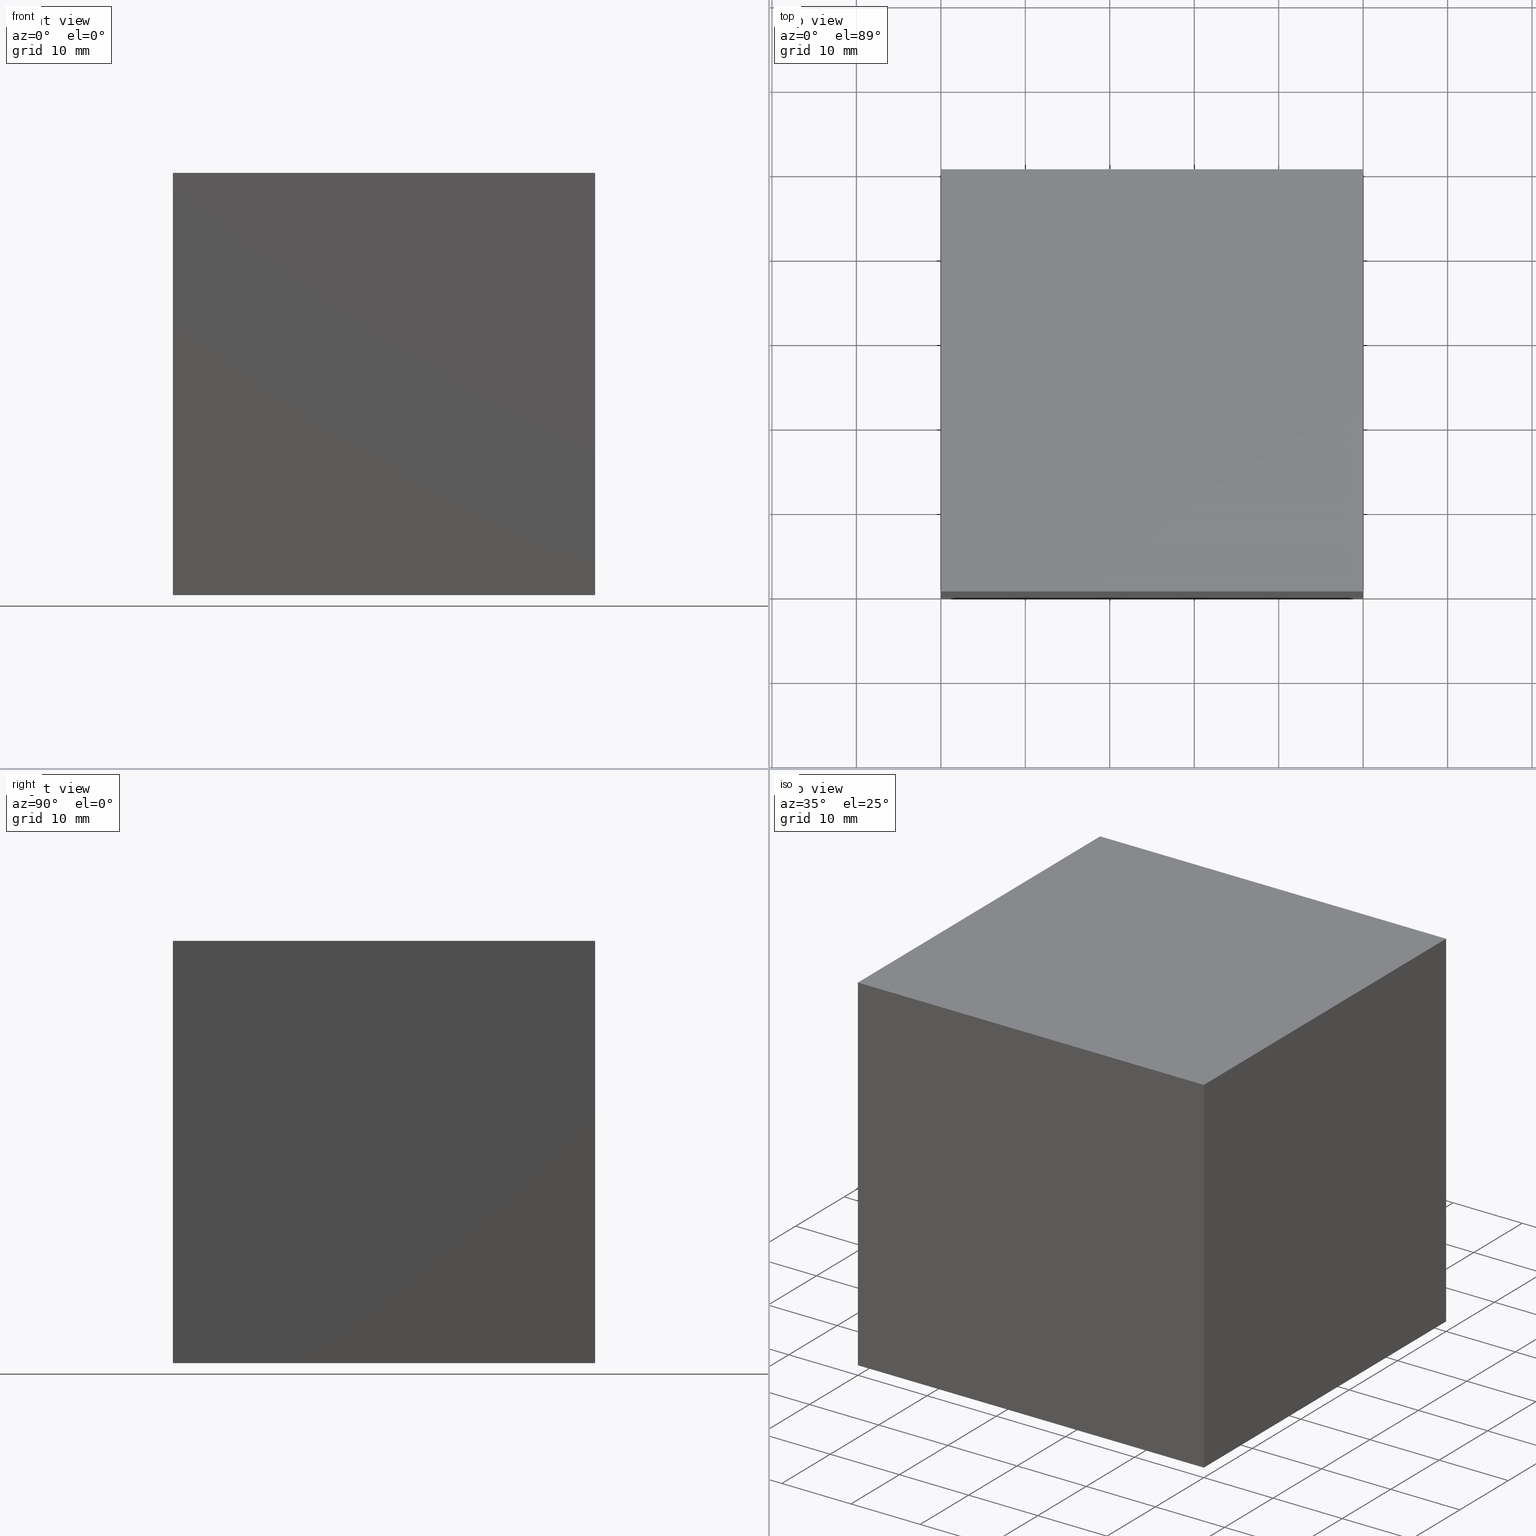
[diagram: canonical four-view strip — front | top / right | iso, engineering-drawing reading convention]
A machine part, canonical four-view strip (front | top / right | iso — engineering-drawing reading convention). The complete STEP part file that produces these views, byte-faithful:
ISO-10303-21;
HEADER;
FILE_DESCRIPTION (( 'STEP AP214' ),
    '1' );
FILE_NAME ('352518.STEP',
    '2019-08-15T02:56:00',
    ( 'user' ),
    ( '΢���й�' ),
    'SwSTEP 2.0',
    'SolidWorks 2016',
    '' );
FILE_SCHEMA (( 'AUTOMOTIVE_DESIGN' ));
ENDSEC;

DATA;
#1 = EDGE_CURVE ( 'NONE', #24, #55, #176, .T. ) ;
#2 = ORIENTED_EDGE ( 'NONE', *, *, #71, .F. ) ;
#3 = CLOSED_SHELL ( 'NONE', ( #189, #57, #23, #22, #75 ) ) ;
#4 = PRODUCT_DEFINITION_CONTEXT ( 'detailed design', #103, 'design' ) ;
#5 =( GEOMETRIC_REPRESENTATION_CONTEXT ( 3 ) GLOBAL_UNCERTAINTY_ASSIGNED_CONTEXT ( ( #68 ) ) GLOBAL_UNIT_ASSIGNED_CONTEXT ( ( #147, #148, #157 ) ) REPRESENTATION_CONTEXT ( 'NONE', 'WORKASPACE' ) );
#6 = FACE_OUTER_BOUND ( 'NONE', #123, .T. ) ;
#7 = DIRECTION ( 'NONE',  ( 0.0000000000000000000, -0.0000000000000000000, 1.000000000000000000 ) ) ;
#8 = VECTOR ( 'NONE', #260, 1000.000000000000000 ) ;
#9 = VERTEX_POINT ( 'NONE', #67 ) ;
#10 = ORIENTED_EDGE ( 'NONE', *, *, #248, .F. ) ;
#11 = PLANE ( 'NONE',  #254 ) ;
#12 = CARTESIAN_POINT ( 'NONE',  ( -50.00000000000000000, 0.0000000000000000000, -49.99999999999999300 ) ) ;
#13 = LINE ( 'NONE', #59, #201 ) ;
#14 = VECTOR ( 'NONE', #236, 1000.000000000000000 ) ;
#15 = DIRECTION ( 'NONE',  ( 0.0000000000000000000, -0.0000000000000000000, 1.000000000000000000 ) ) ;
#16 = ORIENTED_EDGE ( 'NONE', *, *, #116, .T. ) ;
#17 = DIRECTION ( 'NONE',  ( -0.0000000000000000000, 1.000000000000000000, 0.0000000000000000000 ) ) ;
#18 = ADVANCED_FACE ( 'NONE', ( #183 ), #106, .T. ) ;
#19 = MECHANICAL_DESIGN_GEOMETRIC_PRESENTATION_REPRESENTATION (  '', ( #34 ), #5 ) ;
#20 = CARTESIAN_POINT ( 'NONE',  ( 0.0000000000000000000, 50.00000000000000000, 0.0000000000000000000 ) ) ;
#21 = ORIENTED_EDGE ( 'NONE', *, *, #298, .F. ) ;
#22 = ADVANCED_FACE ( 'NONE', ( #180 ), #299, .T. ) ;
#23 = ADVANCED_FACE ( 'NONE', ( #207 ), #172, .F. ) ;
#24 = VERTEX_POINT ( 'NONE', #132 ) ;
#25 = CARTESIAN_POINT ( 'NONE',  ( -50.00000000000000000, 50.00000000000000000, -49.99999999999999300 ) ) ;
#26 = PRESENTATION_STYLE_ASSIGNMENT (( #264 ) ) ;
#27 = CARTESIAN_POINT ( 'NONE',  ( -50.00000000000000000, 50.00000000000000000, -49.99999999999999300 ) ) ;
#28 = DIRECTION ( 'NONE',  ( 1.000000000000000000, 0.0000000000000000000, 0.0000000000000000000 ) ) ;
#29 = FACE_OUTER_BOUND ( 'NONE', #158, .T. ) ;
#30 = PRESENTATION_LAYER_ASSIGNMENT (  '', '', ( #34 ) ) ;
#31 = FACE_OUTER_BOUND ( 'NONE', #146, .T. ) ;
#32 = EDGE_LOOP ( 'NONE', ( #193, #206, #171, #139 ) ) ;
#33 = PRESENTATION_STYLE_ASSIGNMENT (( #209 ) ) ;
#34 = STYLED_ITEM ( 'NONE', ( #259 ), #96 ) ;
#35 = COLOUR_RGB ( '',1.000000000000000000, 1.000000000000000000, 1.000000000000000000 ) ;
#36 = ORIENTED_EDGE ( 'NONE', *, *, #202, .F. ) ;
#37 = MANIFOLD_SOLID_BREP ( '͹̨-����1', #3 ) ;
#38 = AXIS2_PLACEMENT_3D ( 'NONE', #197, #61, #220 ) ;
#39 = VERTEX_POINT ( 'NONE', #243 ) ;
#40 = VERTEX_POINT ( 'NONE', #194 ) ;
#41 = CARTESIAN_POINT ( 'NONE',  ( 0.0000000000000000000, 0.0000000000000000000, 0.0000000000000000000 ) ) ;
#42 = LINE ( 'NONE', #211, #269 ) ;
#43 = ADVANCED_FACE ( 'NONE', ( #31 ), #293, .T. ) ;
#44 =( NAMED_UNIT ( * ) SI_UNIT ( $, .STERADIAN. ) SOLID_ANGLE_UNIT ( ) );
#45 = VECTOR ( 'NONE', #186, 1000.000000000000000 ) ;
#46 =( GEOMETRIC_REPRESENTATION_CONTEXT ( 3 ) GLOBAL_UNCERTAINTY_ASSIGNED_CONTEXT ( ( #229 ) ) GLOBAL_UNIT_ASSIGNED_CONTEXT ( ( #88, #70, #73 ) ) REPRESENTATION_CONTEXT ( 'NONE', 'WORKASPACE' ) );
#47 = DIRECTION ( 'NONE',  ( -1.000000000000000000, 0.0000000000000000000, 1.387778780781445700E-016 ) ) ;
#48 = PRODUCT_CONTEXT ( 'NONE', #85, 'mechanical' ) ;
#49 = CLOSED_SHELL ( 'NONE', ( #18, #58, #294, #43, #185 ) ) ;
#50 = DIRECTION ( 'NONE',  ( -1.000000000000000000, -0.0000000000000000000, -0.0000000000000000000 ) ) ;
#51 = CARTESIAN_POINT ( 'NONE',  ( 0.0000000000000000000, 50.00000000000000000, 0.0000000000000000000 ) ) ;
#52 = ORIENTED_EDGE ( 'NONE', *, *, #173, .T. ) ;
#53 = CARTESIAN_POINT ( 'NONE',  ( 0.0000000000000000000, 50.00000000000000000, -50.00000000000000000 ) ) ;
#54 = LINE ( 'NONE', #51, #121 ) ;
#55 = VERTEX_POINT ( 'NONE', #12 ) ;
#56 = FILL_AREA_STYLE ('',( #283 ) ) ;
#57 = ADVANCED_FACE ( 'NONE', ( #111 ), #208, .F. ) ;
#58 = ADVANCED_FACE ( 'NONE', ( #199 ), #11, .T. ) ;
#59 = CARTESIAN_POINT ( 'NONE',  ( -50.00000000000000000, 50.00000000000000000, 0.0000000000000000000 ) ) ;
#60 = EDGE_LOOP ( 'NONE', ( #74, #288, #282, #240 ) ) ;
#61 = DIRECTION ( 'NONE',  ( -0.0000000000000000000, 0.0000000000000000000, 1.000000000000000000 ) ) ;
#62 = UNCERTAINTY_MEASURE_WITH_UNIT (LENGTH_MEASURE( 1.000000000000000100E-005 ), #76, 'distance_accuracy_value', 'NONE');
#63 = ORIENTED_EDGE ( 'NONE', *, *, #196, .T. ) ;
#64 = PRODUCT_DEFINITION ( 'δ֪', '', #187, #4 ) ;
#65 = LINE ( 'NONE', #188, #120 ) ;
#66 = VECTOR ( 'NONE', #69, 1000.000000000000000 ) ;
#67 = CARTESIAN_POINT ( 'NONE',  ( -50.00000000000000000, 50.00000000000000000, -49.99999999999999300 ) ) ;
#68 = UNCERTAINTY_MEASURE_WITH_UNIT (LENGTH_MEASURE( 1.000000000000000100E-005 ), #147, 'distance_accuracy_value', 'NONE');
#69 = DIRECTION ( 'NONE',  ( 0.7071067811865475700, 0.0000000000000000000, 0.7071067811865474600 ) ) ;
#70 =( NAMED_UNIT ( * ) PLANE_ANGLE_UNIT ( ) SI_UNIT ( $, .RADIAN. ) );
#71 = EDGE_CURVE ( 'NONE', #40, #55, #83, .T. ) ;
#72 = DIRECTION ( 'NONE',  ( -1.000000000000000000, 0.0000000000000000000, 0.0000000000000000000 ) ) ;
#73 =( NAMED_UNIT ( * ) SI_UNIT ( $, .STERADIAN. ) SOLID_ANGLE_UNIT ( ) );
#74 = ORIENTED_EDGE ( 'NONE', *, *, #170, .F. ) ;
#75 = ADVANCED_FACE ( 'NONE', ( #285 ), #160, .F. ) ;
#76 =( LENGTH_UNIT ( ) NAMED_UNIT ( * ) SI_UNIT ( .MILLI., .METRE. ) );
#77 = APPLICATION_PROTOCOL_DEFINITION ( 'draft international standard', 'automotive_design', 1998, #85 ) ;
#78 = CARTESIAN_POINT ( 'NONE',  ( 0.0000000000000000000, 0.0000000000000000000, 0.0000000000000000000 ) ) ;
#79 = AXIS2_PLACEMENT_3D ( 'NONE', #167, #234, #28 ) ;
#80 = DIRECTION ( 'NONE',  ( 0.0000000000000000000, 0.0000000000000000000, -1.000000000000000000 ) ) ;
#81 = DIRECTION ( 'NONE',  ( 1.000000000000000000, 0.0000000000000000000, -1.387778780781445700E-016 ) ) ;
#82 = EDGE_CURVE ( 'NONE', #9, #39, #227, .T. ) ;
#83 = LINE ( 'NONE', #253, #228 ) ;
#84 = PLANE ( 'NONE',  #38 ) ;
#85 = APPLICATION_CONTEXT ( 'automotive_design' ) ;
#86 = VECTOR ( 'NONE', #128, 1000.000000000000000 ) ;
#87 =( GEOMETRIC_REPRESENTATION_CONTEXT ( 3 ) GLOBAL_UNCERTAINTY_ASSIGNED_CONTEXT ( ( #143 ) ) GLOBAL_UNIT_ASSIGNED_CONTEXT ( ( #135, #286, #150 ) ) REPRESENTATION_CONTEXT ( 'NONE', 'WORKASPACE' ) );
#88 =( LENGTH_UNIT ( ) NAMED_UNIT ( * ) SI_UNIT ( .MILLI., .METRE. ) );
#89 = VECTOR ( 'NONE', #300, 1000.000000000000000 ) ;
#90 = MECHANICAL_DESIGN_GEOMETRIC_PRESENTATION_REPRESENTATION (  '', ( #109 ), #87 ) ;
#91 = ORIENTED_EDGE ( 'NONE', *, *, #1, .F. ) ;
#92 = PRODUCT_RELATED_PRODUCT_CATEGORY ( 'part', '', ( #249 ) ) ;
#93 = PRESENTATION_LAYER_ASSIGNMENT (  '', '', ( #109 ) ) ;
#94 = VECTOR ( 'NONE', #47, 1000.000000000000000 ) ;
#95 = VERTEX_POINT ( 'NONE', #231 ) ;
#96 = ADVANCED_BREP_SHAPE_REPRESENTATION ( '352518', ( #37, #292, #79 ), #46 ) ;
#97 = FILL_AREA_STYLE ('',( #114 ) ) ;
#98 = AXIS2_PLACEMENT_3D ( 'NONE', #142, #258, #276 ) ;
#99 = CARTESIAN_POINT ( 'NONE',  ( -50.00000000000000000, 0.0000000000000000000, 0.0000000000000000000 ) ) ;
#100 = SURFACE_SIDE_STYLE ('',( #119 ) ) ;
#101 = EDGE_LOOP ( 'NONE', ( #127, #91, #10, #230 ) ) ;
#102 = DIRECTION ( 'NONE',  ( 0.0000000000000000000, -0.0000000000000000000, 1.000000000000000000 ) ) ;
#103 = APPLICATION_CONTEXT ( 'automotive_design' ) ;
#104 = CARTESIAN_POINT ( 'NONE',  ( 0.0000000000000000000, 50.00000000000000000, 0.0000000000000000000 ) ) ;
#105 = EDGE_CURVE ( 'NONE', #9, #273, #216, .T. ) ;
#106 = PLANE ( 'NONE',  #137 ) ;
#107 = DIRECTION ( 'NONE',  ( 1.387778780781445700E-016, -0.0000000000000000000, 1.000000000000000000 ) ) ;
#108 = ORIENTED_EDGE ( 'NONE', *, *, #248, .T. ) ;
#109 = STYLED_ITEM ( 'NONE', ( #26 ), #292 ) ;
#110 = DIRECTION ( 'NONE',  ( 0.7071067811865474600, 0.0000000000000000000, -0.7071067811865476800 ) ) ;
#111 = FACE_OUTER_BOUND ( 'NONE', #169, .T. ) ;
#112 = CARTESIAN_POINT ( 'NONE',  ( -50.00000000000000000, 50.00000000000000000, -49.99999999999999300 ) ) ;
#113 = APPLICATION_PROTOCOL_DEFINITION ( 'draft international standard', 'automotive_design', 1998, #103 ) ;
#114 = FILL_AREA_STYLE_COLOUR ( '', #156 ) ;
#115 = SURFACE_SIDE_STYLE ('',( #223 ) ) ;
#116 = EDGE_CURVE ( 'NONE', #221, #297, #152, .T. ) ;
#117 = EDGE_LOOP ( 'NONE', ( #63, #256, #21, #267 ) ) ;
#118 = AXIS2_PLACEMENT_3D ( 'NONE', #78, #166, #15 ) ;
#119 = SURFACE_STYLE_FILL_AREA ( #97 ) ;
#120 = VECTOR ( 'NONE', #130, 1000.000000000000000 ) ;
#121 = VECTOR ( 'NONE', #241, 1000.000000000000000 ) ;
#122 = VECTOR ( 'NONE', #245, 1000.000000000000000 ) ;
#123 = EDGE_LOOP ( 'NONE', ( #222, #247, #287, #52 ) ) ;
#124 = DIRECTION ( 'NONE',  ( 0.0000000000000000000, -1.000000000000000000, 0.0000000000000000000 ) ) ;
#125 = CARTESIAN_POINT ( 'NONE',  ( 0.0000000000000000000, 50.00000000000000000, 0.0000000000000000000 ) ) ;
#126 = VECTOR ( 'NONE', #80, 1000.000000000000000 ) ;
#127 = ORIENTED_EDGE ( 'NONE', *, *, #71, .T. ) ;
#128 = DIRECTION ( 'NONE',  ( -0.0000000000000000000, -1.000000000000000000, -0.0000000000000000000 ) ) ;
#129 = CARTESIAN_POINT ( 'NONE',  ( 0.0000000000000000000, 0.0000000000000000000, 0.0000000000000000000 ) ) ;
#130 = DIRECTION ( 'NONE',  ( 0.7071067811865475700, 0.0000000000000000000, 0.7071067811865474600 ) ) ;
#131 = LINE ( 'NONE', #251, #89 ) ;
#132 = CARTESIAN_POINT ( 'NONE',  ( -50.00000000000000000, 50.00000000000000000, -49.99999999999999300 ) ) ;
#133 = AXIS2_PLACEMENT_3D ( 'NONE', #41, #205, #7 ) ;
#134 = LINE ( 'NONE', #27, #122 ) ;
#135 =( LENGTH_UNIT ( ) NAMED_UNIT ( * ) SI_UNIT ( .MILLI., .METRE. ) );
#136 = VERTEX_POINT ( 'NONE', #214 ) ;
#137 = AXIS2_PLACEMENT_3D ( 'NONE', #261, #110, #191 ) ;
#138 = DIRECTION ( 'NONE',  ( 0.0000000000000000000, 0.0000000000000000000, 1.000000000000000000 ) ) ;
#139 = ORIENTED_EDGE ( 'NONE', *, *, #244, .T. ) ;
#140 = EDGE_LOOP ( 'NONE', ( #153, #2, #218 ) ) ;
#141 = LINE ( 'NONE', #104, #86 ) ;
#142 = CARTESIAN_POINT ( 'NONE',  ( -50.00000000000000000, 50.00000000000000000, -49.99999999999999300 ) ) ;
#143 = UNCERTAINTY_MEASURE_WITH_UNIT (LENGTH_MEASURE( 1.000000000000000100E-005 ), #135, 'distance_accuracy_value', 'NONE');
#144 = CARTESIAN_POINT ( 'NONE',  ( 0.0000000000000000000, 50.00000000000000000, -50.00000000000000000 ) ) ;
#145 = SURFACE_STYLE_USAGE ( .BOTH. , #100 ) ;
#146 = EDGE_LOOP ( 'NONE', ( #181, #36, #279 ) ) ;
#147 =( LENGTH_UNIT ( ) NAMED_UNIT ( * ) SI_UNIT ( .MILLI., .METRE. ) );
#148 =( NAMED_UNIT ( * ) PLANE_ANGLE_UNIT ( ) SI_UNIT ( $, .RADIAN. ) );
#149 = LINE ( 'NONE', #226, #94 ) ;
#150 =( NAMED_UNIT ( * ) SI_UNIT ( $, .STERADIAN. ) SOLID_ANGLE_UNIT ( ) );
#151 = EDGE_CURVE ( 'NONE', #179, #291, #54, .T. ) ;
#152 = LINE ( 'NONE', #99, #165 ) ;
#153 = ORIENTED_EDGE ( 'NONE', *, *, #196, .F. ) ;
#154 = COLOUR_RGB ( '',1.000000000000000000, 1.000000000000000000, 1.000000000000000000 ) ;
#155 = EDGE_CURVE ( 'NONE', #136, #40, #266, .T. ) ;
#156 = COLOUR_RGB ( '',1.000000000000000000, 1.000000000000000000, 1.000000000000000000 ) ;
#157 =( NAMED_UNIT ( * ) SI_UNIT ( $, .STERADIAN. ) SOLID_ANGLE_UNIT ( ) );
#158 = EDGE_LOOP ( 'NONE', ( #232, #16, #237 ) ) ;
#159 = ORIENTED_EDGE ( 'NONE', *, *, #270, .T. ) ;
#160 = PLANE ( 'NONE',  #133 ) ;
#161 = MECHANICAL_DESIGN_GEOMETRIC_PRESENTATION_REPRESENTATION (  '', ( #289 ), #164 ) ;
#162 = DIRECTION ( 'NONE',  ( -1.000000000000000000, 0.0000000000000000000, 1.387778780781445700E-016 ) ) ;
#163 = SHAPE_DEFINITION_REPRESENTATION ( #213, #96 ) ;
#164 =( GEOMETRIC_REPRESENTATION_CONTEXT ( 3 ) GLOBAL_UNCERTAINTY_ASSIGNED_CONTEXT ( ( #62 ) ) GLOBAL_UNIT_ASSIGNED_CONTEXT ( ( #76, #184, #44 ) ) REPRESENTATION_CONTEXT ( 'NONE', 'WORKASPACE' ) );
#165 = VECTOR ( 'NONE', #50, 1000.000000000000000 ) ;
#166 = DIRECTION ( 'NONE',  ( 0.0000000000000000000, 1.000000000000000000, 0.0000000000000000000 ) ) ;
#167 = CARTESIAN_POINT ( 'NONE',  ( 0.0000000000000000000, 0.0000000000000000000, 0.0000000000000000000 ) ) ;
#168 = ORIENTED_EDGE ( 'NONE', *, *, #151, .F. ) ;
#169 = EDGE_LOOP ( 'NONE', ( #224, #225, #168, #159 ) ) ;
#170 = EDGE_CURVE ( 'NONE', #297, #39, #255, .T. ) ;
#171 = ORIENTED_EDGE ( 'NONE', *, *, #105, .T. ) ;
#172 = PLANE ( 'NONE',  #198 ) ;
#173 = EDGE_CURVE ( 'NONE', #95, #297, #284, .T. ) ;
#174 = CARTESIAN_POINT ( 'NONE',  ( 0.0000000000000000000, 50.00000000000000000, -50.00000000000000000 ) ) ;
#175 = DIRECTION ( 'NONE',  ( -1.000000000000000000, -0.0000000000000000000, -0.0000000000000000000 ) ) ;
#176 = LINE ( 'NONE', #112, #195 ) ;
#177 = CARTESIAN_POINT ( 'NONE',  ( -50.00000000000000000, 0.0000000000000000000, 0.0000000000000000000 ) ) ;
#178 = EDGE_CURVE ( 'NONE', #39, #221, #65, .T. ) ;
#179 = VERTEX_POINT ( 'NONE', #278 ) ;
#180 = FACE_OUTER_BOUND ( 'NONE', #203, .T. ) ;
#181 = ORIENTED_EDGE ( 'NONE', *, *, #105, .F. ) ;
#182 = DIRECTION ( 'NONE',  ( 0.0000000000000000000, 0.0000000000000000000, 1.000000000000000000 ) ) ;
#183 = FACE_OUTER_BOUND ( 'NONE', #32, .T. ) ;
#184 =( NAMED_UNIT ( * ) PLANE_ANGLE_UNIT ( ) SI_UNIT ( $, .RADIAN. ) );
#185 = ADVANCED_FACE ( 'NONE', ( #29 ), #277, .F. ) ;
#186 = DIRECTION ( 'NONE',  ( 0.7071067811865475700, 0.0000000000000000000, 0.7071067811865474600 ) ) ;
#187 = PRODUCT_DEFINITION_FORMATION_WITH_SPECIFIED_SOURCE ( '�κ�', '', #249, .NOT_KNOWN. ) ;
#188 = CARTESIAN_POINT ( 'NONE',  ( 0.0000000000000000000, 0.0000000000000000000, 0.0000000000000000000 ) ) ;
#189 = ADVANCED_FACE ( 'NONE', ( #281 ), #296, .F. ) ;
#190 = CARTESIAN_POINT ( 'NONE',  ( 0.0000000000000000000, 0.0000000000000000000, 0.0000000000000000000 ) ) ;
#191 = DIRECTION ( 'NONE',  ( -0.7071067811865476800, 0.0000000000000000000, -0.7071067811865474600 ) ) ;
#192 = VECTOR ( 'NONE', #124, 1000.000000000000000 ) ;
#193 = ORIENTED_EDGE ( 'NONE', *, *, #178, .F. ) ;
#194 = CARTESIAN_POINT ( 'NONE',  ( 0.0000000000000000000, 0.0000000000000000000, -50.00000000000000000 ) ) ;
#195 = VECTOR ( 'NONE', #262, 1000.000000000000000 ) ;
#196 = EDGE_CURVE ( 'NONE', #55, #136, #204, .T. ) ;
#197 = CARTESIAN_POINT ( 'NONE',  ( -50.00000000000000000, 50.00000000000000000, 0.0000000000000000000 ) ) ;
#198 = AXIS2_PLACEMENT_3D ( 'NONE', #144, #107, #81 ) ;
#199 = FACE_OUTER_BOUND ( 'NONE', #60, .T. ) ;
#200 = ORIENTED_EDGE ( 'NONE', *, *, #151, .T. ) ;
#201 = VECTOR ( 'NONE', #175, 1000.000000000000000 ) ;
#202 = EDGE_CURVE ( 'NONE', #95, #9, #131, .T. ) ;
#203 = EDGE_LOOP ( 'NONE', ( #242, #200, #108 ) ) ;
#204 = LINE ( 'NONE', #235, #66 ) ;
#205 = DIRECTION ( 'NONE',  ( -0.0000000000000000000, 1.000000000000000000, 0.0000000000000000000 ) ) ;
#206 = ORIENTED_EDGE ( 'NONE', *, *, #82, .F. ) ;
#207 = FACE_OUTER_BOUND ( 'NONE', #101, .T. ) ;
#208 = PLANE ( 'NONE',  #238 ) ;
#209 = SURFACE_STYLE_USAGE ( .BOTH. , #217 ) ;
#210 = LINE ( 'NONE', #174, #263 ) ;
#211 = CARTESIAN_POINT ( 'NONE',  ( 0.0000000000000000000, 50.00000000000000000, 0.0000000000000000000 ) ) ;
#212 = CARTESIAN_POINT ( 'NONE',  ( -50.00000000000000000, -0.0000000000000000000, -49.99999999999999300 ) ) ;
#213 = PRODUCT_DEFINITION_SHAPE ( 'NONE', 'NONE',  #64 ) ;
#214 = CARTESIAN_POINT ( 'NONE',  ( 0.0000000000000000000, 0.0000000000000000000, 0.0000000000000000000 ) ) ;
#215 = DIRECTION ( 'NONE',  ( -0.0000000000000000000, -1.000000000000000000, -0.0000000000000000000 ) ) ;
#216 = LINE ( 'NONE', #272, #45 ) ;
#217 = SURFACE_SIDE_STYLE ('',( #268 ) ) ;
#218 = ORIENTED_EDGE ( 'NONE', *, *, #155, .F. ) ;
#219 = FILL_AREA_STYLE_COLOUR ( '', #35 ) ;
#220 = DIRECTION ( 'NONE',  ( 1.000000000000000000, 0.0000000000000000000, 0.0000000000000000000 ) ) ;
#221 = VERTEX_POINT ( 'NONE', #129 ) ;
#222 = ORIENTED_EDGE ( 'NONE', *, *, #116, .F. ) ;
#223 = SURFACE_STYLE_FILL_AREA ( #246 ) ;
#224 = ORIENTED_EDGE ( 'NONE', *, *, #155, .T. ) ;
#225 = ORIENTED_EDGE ( 'NONE', *, *, #250, .F. ) ;
#226 = CARTESIAN_POINT ( 'NONE',  ( 0.0000000000000000000, 50.00000000000000000, -50.00000000000000000 ) ) ;
#227 = LINE ( 'NONE', #252, #192 ) ;
#228 = VECTOR ( 'NONE', #162, 1000.000000000000000 ) ;
#229 = UNCERTAINTY_MEASURE_WITH_UNIT (LENGTH_MEASURE( 1.000000000000000100E-005 ), #88, 'distance_accuracy_value', 'NONE');
#230 = ORIENTED_EDGE ( 'NONE', *, *, #250, .T. ) ;
#231 = CARTESIAN_POINT ( 'NONE',  ( -50.00000000000000000, 50.00000000000000000, 0.0000000000000000000 ) ) ;
#232 = ORIENTED_EDGE ( 'NONE', *, *, #178, .T. ) ;
#233 = AXIS2_PLACEMENT_3D ( 'NONE', #125, #275, #102 ) ;
#234 = DIRECTION ( 'NONE',  ( 0.0000000000000000000, 0.0000000000000000000, 1.000000000000000000 ) ) ;
#235 = CARTESIAN_POINT ( 'NONE',  ( -50.00000000000000000, 0.0000000000000000000, -49.99999999999999300 ) ) ;
#236 = DIRECTION ( 'NONE',  ( -0.0000000000000000000, -0.0000000000000000000, -1.000000000000000000 ) ) ;
#237 = ORIENTED_EDGE ( 'NONE', *, *, #170, .T. ) ;
#238 = AXIS2_PLACEMENT_3D ( 'NONE', #257, #72, #182 ) ;
#239 = CARTESIAN_POINT ( 'NONE',  ( -50.00000000000000000, 50.00000000000000000, 0.0000000000000000000 ) ) ;
#240 = ORIENTED_EDGE ( 'NONE', *, *, #82, .T. ) ;
#241 = DIRECTION ( 'NONE',  ( 0.0000000000000000000, 0.0000000000000000000, -1.000000000000000000 ) ) ;
#242 = ORIENTED_EDGE ( 'NONE', *, *, #298, .T. ) ;
#243 = CARTESIAN_POINT ( 'NONE',  ( -50.00000000000000000, -0.0000000000000000000, -49.99999999999999300 ) ) ;
#244 = EDGE_CURVE ( 'NONE', #273, #221, #42, .T. ) ;
#245 = DIRECTION ( 'NONE',  ( 0.7071067811865475700, 0.0000000000000000000, 0.7071067811865474600 ) ) ;
#246 = FILL_AREA_STYLE ('',( #219 ) ) ;
#247 = ORIENTED_EDGE ( 'NONE', *, *, #244, .F. ) ;
#248 = EDGE_CURVE ( 'NONE', #291, #24, #149, .T. ) ;
#249 = PRODUCT ( '352518', '352518', '', ( #48 ) ) ;
#250 = EDGE_CURVE ( 'NONE', #291, #40, #210, .T. ) ;
#251 = CARTESIAN_POINT ( 'NONE',  ( -50.00000000000000000, 50.00000000000000000, -49.99999999999999300 ) ) ;
#252 = CARTESIAN_POINT ( 'NONE',  ( -50.00000000000000000, 50.00000000000000000, -49.99999999999999300 ) ) ;
#253 = CARTESIAN_POINT ( 'NONE',  ( 0.0000000000000000000, 0.0000000000000000000, -50.00000000000000000 ) ) ;
#254 = AXIS2_PLACEMENT_3D ( 'NONE', #25, #274, #138 ) ;
#255 = LINE ( 'NONE', #212, #14 ) ;
#256 = ORIENTED_EDGE ( 'NONE', *, *, #270, .F. ) ;
#257 = CARTESIAN_POINT ( 'NONE',  ( 0.0000000000000000000, 50.00000000000000000, 0.0000000000000000000 ) ) ;
#258 = DIRECTION ( 'NONE',  ( 0.7071067811865474600, 0.0000000000000000000, -0.7071067811865476800 ) ) ;
#259 = PRESENTATION_STYLE_ASSIGNMENT (( #145 ) ) ;
#260 = DIRECTION ( 'NONE',  ( 0.0000000000000000000, -1.000000000000000000, 0.0000000000000000000 ) ) ;
#261 = CARTESIAN_POINT ( 'NONE',  ( 0.0000000000000000000, 50.00000000000000000, 0.0000000000000000000 ) ) ;
#262 = DIRECTION ( 'NONE',  ( -0.0000000000000000000, -1.000000000000000000, -0.0000000000000000000 ) ) ;
#263 = VECTOR ( 'NONE', #215, 1000.000000000000000 ) ;
#264 = SURFACE_STYLE_USAGE ( .BOTH. , #115 ) ;
#265 = AXIS2_PLACEMENT_3D ( 'NONE', #20, #17, #280 ) ;
#266 = LINE ( 'NONE', #190, #126 ) ;
#267 = ORIENTED_EDGE ( 'NONE', *, *, #1, .T. ) ;
#268 = SURFACE_STYLE_FILL_AREA ( #56 ) ;
#269 = VECTOR ( 'NONE', #295, 1000.000000000000000 ) ;
#270 = EDGE_CURVE ( 'NONE', #179, #136, #141, .T. ) ;
#271 = PRESENTATION_LAYER_ASSIGNMENT (  '', '', ( #289 ) ) ;
#272 = CARTESIAN_POINT ( 'NONE',  ( 0.0000000000000000000, 50.00000000000000000, 0.0000000000000000000 ) ) ;
#273 = VERTEX_POINT ( 'NONE', #301 ) ;
#274 = DIRECTION ( 'NONE',  ( -1.000000000000000000, 0.0000000000000000000, 0.0000000000000000000 ) ) ;
#275 = DIRECTION ( 'NONE',  ( 0.0000000000000000000, 1.000000000000000000, 0.0000000000000000000 ) ) ;
#276 = DIRECTION ( 'NONE',  ( -0.7071067811865476800, 0.0000000000000000000, -0.7071067811865474600 ) ) ;
#277 = PLANE ( 'NONE',  #118 ) ;
#278 = CARTESIAN_POINT ( 'NONE',  ( 0.0000000000000000000, 50.00000000000000000, 0.0000000000000000000 ) ) ;
#279 = ORIENTED_EDGE ( 'NONE', *, *, #290, .F. ) ;
#280 = DIRECTION ( 'NONE',  ( 0.0000000000000000000, -0.0000000000000000000, 1.000000000000000000 ) ) ;
#281 = FACE_OUTER_BOUND ( 'NONE', #117, .T. ) ;
#282 = ORIENTED_EDGE ( 'NONE', *, *, #202, .T. ) ;
#283 = FILL_AREA_STYLE_COLOUR ( '', #154 ) ;
#284 = LINE ( 'NONE', #239, #8 ) ;
#285 = FACE_OUTER_BOUND ( 'NONE', #140, .T. ) ;
#286 =( NAMED_UNIT ( * ) PLANE_ANGLE_UNIT ( ) SI_UNIT ( $, .RADIAN. ) );
#287 = ORIENTED_EDGE ( 'NONE', *, *, #290, .T. ) ;
#288 = ORIENTED_EDGE ( 'NONE', *, *, #173, .F. ) ;
#289 = STYLED_ITEM ( 'NONE', ( #33 ), #37 ) ;
#290 = EDGE_CURVE ( 'NONE', #273, #95, #13, .T. ) ;
#291 = VERTEX_POINT ( 'NONE', #53 ) ;
#292 = MANIFOLD_SOLID_BREP ( '͹̨-����2', #49 ) ;
#293 = PLANE ( 'NONE',  #233 ) ;
#294 = ADVANCED_FACE ( 'NONE', ( #6 ), #84, .T. ) ;
#295 = DIRECTION ( 'NONE',  ( 0.0000000000000000000, -1.000000000000000000, 0.0000000000000000000 ) ) ;
#296 = PLANE ( 'NONE',  #98 ) ;
#297 = VERTEX_POINT ( 'NONE', #177 ) ;
#298 = EDGE_CURVE ( 'NONE', #24, #179, #134, .T. ) ;
#299 = PLANE ( 'NONE',  #265 ) ;
#300 = DIRECTION ( 'NONE',  ( -0.0000000000000000000, -0.0000000000000000000, -1.000000000000000000 ) ) ;
#301 = CARTESIAN_POINT ( 'NONE',  ( 0.0000000000000000000, 50.00000000000000000, 0.0000000000000000000 ) ) ;
ENDSEC;
END-ISO-10303-21;
